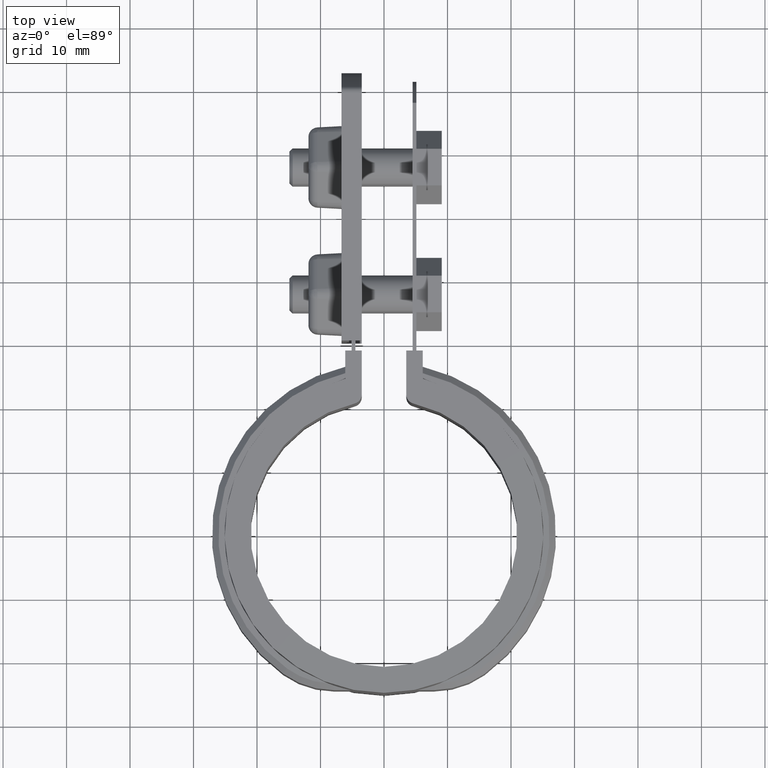
[diagram: clean part render]
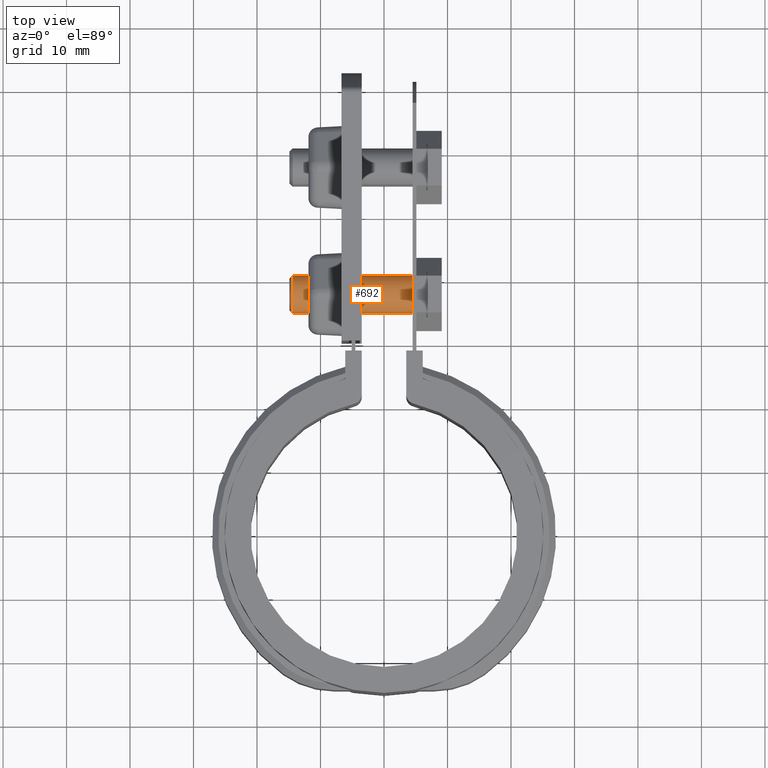
[diagram: same view with one face highlighted and labeled with its STEP entity id]
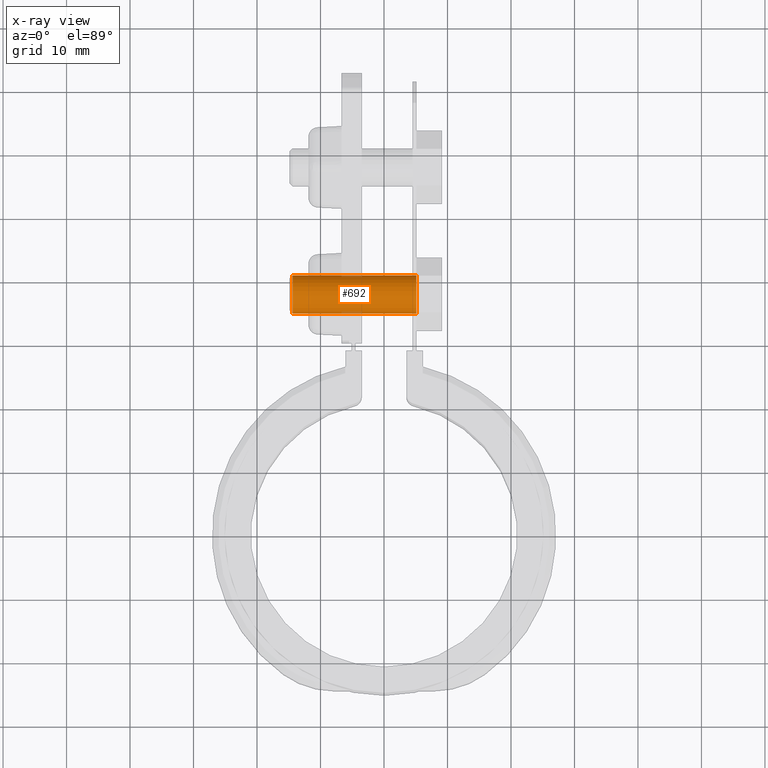
[diagram: x-ray of the same camera — body ghosted, the highlighted face saturated]
A machine part, top view. The second image highlights one B-rep face of the part: STEP entity #692.
The next image is the same camera in x-ray: the body ghosted, the highlighted face saturated — about 2% of this face is hidden behind the body in this view.
In plain terms, the highlighted cylindrical surface (bore or boss wall) has radius 3 mm, axis along (-1, 0, -0).
Its self-contained STEP definition (entity closure, byte-faithful):
#692 = ADVANCED_FACE( '', ( #1413, #1414 ), #1415, .T. );
#1413 = FACE_OUTER_BOUND( '', #2801, .T. );
#1414 = FACE_OUTER_BOUND( '', #2802, .T. );
#1415 = CYLINDRICAL_SURFACE( '', #2803, 2.99999999999892 );
#2801 = EDGE_LOOP( '', ( #6492 ) );
#2802 = EDGE_LOOP( '', ( #6493 ) );
#2803 = AXIS2_PLACEMENT_3D( '', #6494, #6495, #6496 );
#6492 = ORIENTED_EDGE( '', *, *, #7476, .F. );
#6493 = ORIENTED_EDGE( '', *, *, #7489, .T. );
#6494 = CARTESIAN_POINT( '', ( 13.5487843911358, 37.8954076850486, -12.5000000000000 ) );
#6495 = DIRECTION( '', ( -1.00000000000000, 5.55523712946982E-050, -3.20731765211237E-050 ) );
#6496 = DIRECTION( '', ( -6.41463530422359E-050, -0.866025403784595, 0.499999999999729 ) );
#7476 = EDGE_CURVE( '', #8986, #8986, #8987, .T. );
#7489 = EDGE_CURVE( '', #9006, #9006, #9007, .T. );
#8986 = VERTEX_POINT( '', #12727 );
#8987 = CIRCLE( '', #12728, 2.99999999999892 );
#9006 = VERTEX_POINT( '', #12759 );
#9007 = CIRCLE( '', #12760, 2.99999999999892 );
#12727 = CARTESIAN_POINT( '', ( 5.10000000000000, 35.2973314736957, -11.0000000000014 ) );
#12728 = AXIS2_PLACEMENT_3D( '', #14021, #14022, #14023 );
#12759 = CARTESIAN_POINT( '', ( -14.4000000000000, 40.4934838964014, -13.9999999999986 ) );
#12760 = AXIS2_PLACEMENT_3D( '', #14036, #14037, #14038 );
#14021 = CARTESIAN_POINT( '', ( 5.10000000000000, 37.8954076850486, -12.5000000000000 ) );
#14022 = DIRECTION( '', ( 1.00000000000000, -5.55523712946982E-050, 3.20731765211237E-050 ) );
#14023 = DIRECTION( '', ( -6.41463530422359E-050, -0.866025403784595, 0.499999999999729 ) );
#14036 = CARTESIAN_POINT( '', ( -14.4000000000000, 37.8954076850486, -12.5000000000000 ) );
#14037 = DIRECTION( '', ( 1.00000000000000, -5.55523712946982E-050, 3.20731765211237E-050 ) );
#14038 = DIRECTION( '', ( 6.41463530422359E-050, 0.866025403784595, -0.499999999999729 ) );